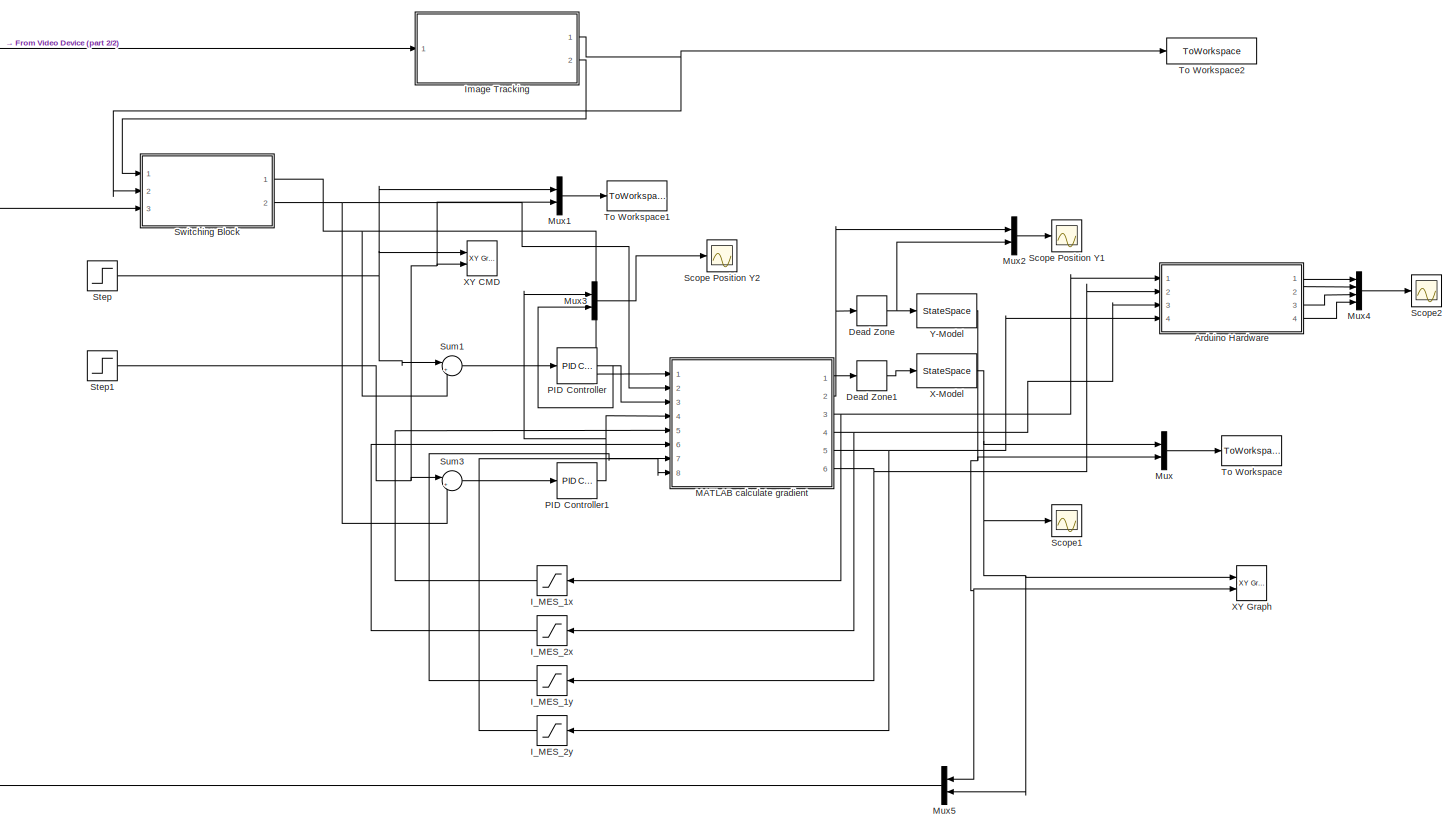
[diagram: root canvas - part 1/2, most of the canvas]
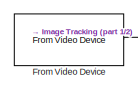
[diagram: root canvas - part 2/2, top left region]
MODEL slx_6fe9101bec93
KIND model
CONFIG AbsTol = auto
CONFIG FixedStep = auto
CONFIG MaxStep = auto
CONFIG MinStep = auto
CONFIG RelTol = 1e-3
CONFIG SampleTimeConstraint = Unconstrained
CONFIG Solver = ode45
CONFIG SolverMode = Auto
CONFIG SolverName = ode45
CONFIG StartTime = 0.0
CONFIG StopTime = 30
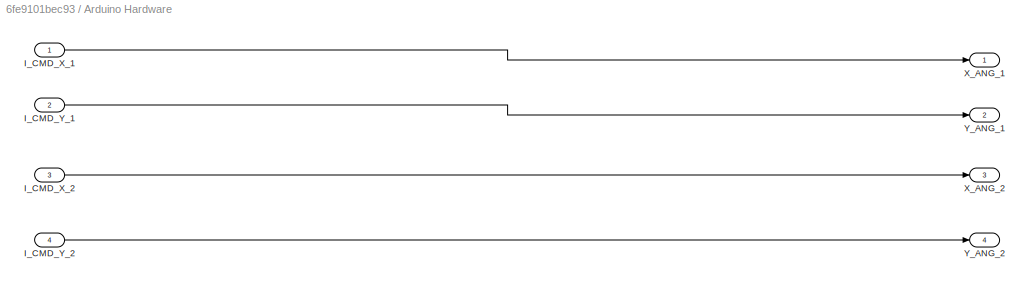
BLOCK [SubSystem] Arduino Hardware
  Ports = [4, 4]
  RequestExecContextInheritance = off
  Variant = off
BLOCK [Inport] Arduino Hardware/I_CMD_X_1
  IconDisplay = Port number
BLOCK [Inport] Arduino Hardware/I_CMD_X_2
  IconDisplay = Port number
  Port = 3
BLOCK [Inport] Arduino Hardware/I_CMD_Y_1
  IconDisplay = Port number
  Port = 2
BLOCK [Inport] Arduino Hardware/I_CMD_Y_2
  IconDisplay = Port number
  Port = 4
BLOCK [Outport] Arduino Hardware/X_ANG_1
  IconDisplay = Port number
BLOCK [Outport] Arduino Hardware/X_ANG_2
  IconDisplay = Port number
  Port = 3
BLOCK [Outport] Arduino Hardware/Y_ANG_1
  IconDisplay = Port number
  Port = 2
BLOCK [Outport] Arduino Hardware/Y_ANG_2
  IconDisplay = Port number
  Port = 4
BLOCK [DeadZone] Dead Zone
  LowerValue = -0.001
  UpperValue = 0.001
BLOCK [DeadZone] Dead Zone1
  LowerValue = -0.001
  UpperValue = 0.001
BLOCK [Reference] From Video Device  REF=imaqlib/From Video Device
  Ports = [0, 1]
  SourceBlock = imaqlib/From Video Device
  SourceType = From Video Device
  UserDataPersistent = on
BLOCK [Saturate] I_MES_1x
  InputPortMap = u0
  LowerLimit = -17
  Ports = [1, 1]
  UpperLimit = 17
BLOCK [Saturate] I_MES_1y
  InputPortMap = u0
  LowerLimit = -17
  Ports = [1, 1]
  UpperLimit = 17
BLOCK [Saturate] I_MES_2x
  InputPortMap = u0
  LowerLimit = -17
  Ports = [1, 1]
  UpperLimit = 17
BLOCK [Saturate] I_MES_2y
  InputPortMap = u0
  LowerLimit = -17
  Ports = [1, 1]
  UpperLimit = 17
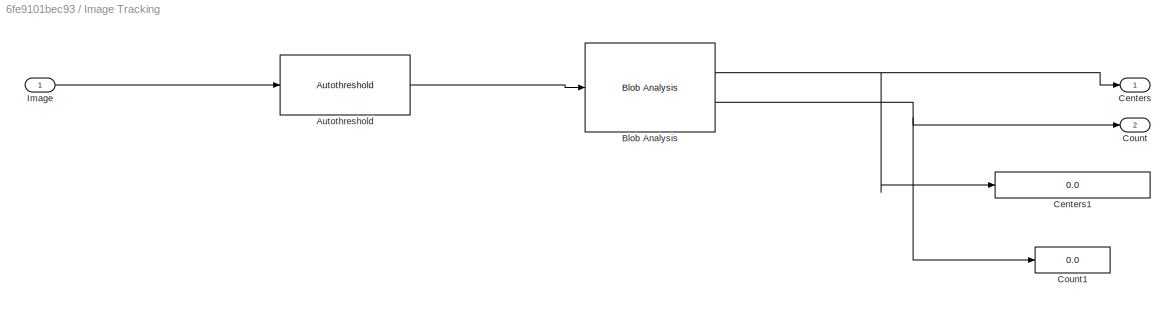
BLOCK [SubSystem] Image Tracking
  Ports = [1, 2]
  RequestExecContextInheritance = off
  Variant = off
BLOCK [Reference] Image Tracking/Autothreshold  REF=visionconversions/Autothreshold
  Ports = [1, 1]
  SourceBlock = visionconversions/Autothreshold
  SourceType = Autothreshold
BLOCK [Reference] Image Tracking/Blob Analysis  REF=visionstatistics/Blob Analysis
  Ports = [1, 2]
  SourceBlock = visionstatistics/Blob Analysis
  SourceType = Blob Analysis
  Tag = vipblks_row_conv
BLOCK [Outport] Image Tracking/Centers
  IconDisplay = Port number
BLOCK [Display] Image Tracking/Centers1
  Decimation = 1
  Ports = [1]
BLOCK [Outport] Image Tracking/Count
  IconDisplay = Port number
  Port = 2
BLOCK [Display] Image Tracking/Count1
  Decimation = 1
  Format = long
  Ports = [1]
BLOCK [Inport] Image Tracking/Image
  IconDisplay = Port number
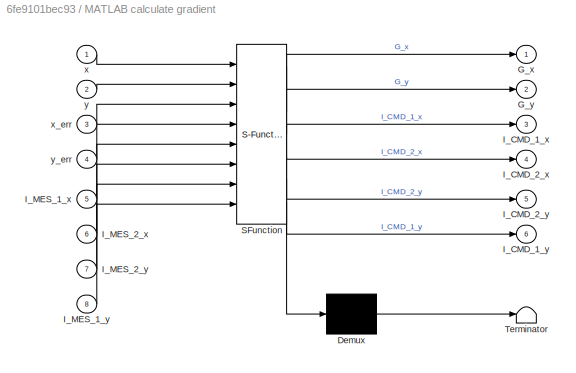
BLOCK [SubSystem] MATLAB calculate gradient
  ErrorFcn = Stateflow.Translate.translate
  PermitHierarchicalResolution = ExplicitOnly
  Ports = [8, 6]
  RequestExecContextInheritance = off
  SFBlockType = MATLAB Function
  TreatAsAtomicUnit = on
  Variant = off
BLOCK [Demux] MATLAB calculate gradient/ Demux 
  Outputs = 1
  Ports = [1, 1]
BLOCK [S-Function] MATLAB calculate gradient/ SFunction 
  EnableBusSupport = on
  FunctionName = sf_sfun
  PortCounts = [8 7]
  Ports = [8, 7]
  SFunctionDeploymentMode = off
  Tag = Stateflow S-Function ball_model_xy 2
BLOCK [Terminator] MATLAB calculate gradient/ Terminator 
BLOCK [Outport] MATLAB calculate gradient/G_x
  IconDisplay = Port number
BLOCK [Outport] MATLAB calculate gradient/G_y
  IconDisplay = Port number
  Port = 2
BLOCK [Outport] MATLAB calculate gradient/I_CMD_1_x
  IconDisplay = Port number
  Port = 3
BLOCK [Outport] MATLAB calculate gradient/I_CMD_1_y
  IconDisplay = Port number
  Port = 6
BLOCK [Outport] MATLAB calculate gradient/I_CMD_2_x
  IconDisplay = Port number
  Port = 4
BLOCK [Outport] MATLAB calculate gradient/I_CMD_2_y
  IconDisplay = Port number
  Port = 5
BLOCK [Inport] MATLAB calculate gradient/I_MES_1_x
  IconDisplay = Port number
  Port = 5
BLOCK [Inport] MATLAB calculate gradient/I_MES_1_y
  IconDisplay = Port number
  Port = 8
BLOCK [Inport] MATLAB calculate gradient/I_MES_2_x
  IconDisplay = Port number
  Port = 6
BLOCK [Inport] MATLAB calculate gradient/I_MES_2_y
  IconDisplay = Port number
  Port = 7
BLOCK [Inport] MATLAB calculate gradient/x
  IconDisplay = Port number
BLOCK [Inport] MATLAB calculate gradient/x_err
  IconDisplay = Port number
  Port = 3
BLOCK [Inport] MATLAB calculate gradient/y
  IconDisplay = Port number
  Port = 2
BLOCK [Inport] MATLAB calculate gradient/y_err
  IconDisplay = Port number
  Port = 4
BLOCK [Mux] Mux
  DisplayOption = bar
  Inputs = 2
  Ports = [2, 1]
BLOCK [Mux] Mux1
  DisplayOption = bar
  Inputs = 2
  Ports = [2, 1]
BLOCK [Mux] Mux2
  DisplayOption = bar
  Inputs = 2
  Ports = [2, 1]
BLOCK [Mux] Mux3
  DisplayOption = bar
  Inputs = 2
  Ports = [2, 1]
BLOCK [Mux] Mux4
  DisplayOption = bar
  Ports = [4, 1]
BLOCK [Mux] Mux5
  DisplayOption = bar
  Inputs = 2
  Ports = [2, 1]
BLOCK [Reference] PID Controller  REF=simulink/Continuous/PID Controller
  Ports = [1, 1]
  SourceBlock = simulink/Continuous/PID Controller
  SourceType = PID 1dof
BLOCK [Reference] PID Controller1  REF=simulink/Continuous/PID Controller
  Ports = [1, 1]
  SourceBlock = simulink/Continuous/PID Controller
  SourceType = PID 1dof
BLOCK [Scope] Scope Position Y1
  Ports = [1]
  ScopeSpecificationString = C++SS(StrPVP('Location','[17, 170, 1310, 762]'),StrPVP('Open','off'),MxPVP('AxesTitles',24,'struct(''axes1'',''%<SignalLabel>'')'),MxPVP('ScopeGraphics',28,'struct(''FigureColor'',''[0.5 0.5 0.5]'',''AxesColor'',''[0 0 0]'',''AxesTickColor'',''[1 1 1]'',''LineColors'',''[1 1 0;1 0 1;0 1 1;1 0 0;0 1 0;0 0 1]'',''LineStyles'',''-|-|-|-|-|-'',''LineWidths'',''[0.5 0.5 0.5 0.5 0.5 0.5]'',''MarkerStyle...<+347ch>
BLOCK [Scope] Scope Position Y2
  Ports = [1]
  ScopeSpecificationString = C++SS(StrPVP('Location','[17, 163, 1300, 762]'),StrPVP('Open','off'),MxPVP('AxesTitles',24,'struct(''axes1'',''%<SignalLabel>'')'),MxPVP('ScopeGraphics',28,'struct(''FigureColor'',''[0.5 0.5 0.5]'',''AxesColor'',''[0 0 0]'',''AxesTickColor'',''[1 1 1]'',''LineColors'',''[1 1 0;1 0 1;0 1 1;1 0 0;0 1 0;0 0 1]'',''LineStyles'',''-|-|-|-|-|-'',''LineWidths'',''[0.5 0.5 0.5 0.5 0.5 0.5]'',''MarkerStyle...<+347ch>
BLOCK [Scope] Scope1
  Ports = [1]
  ScopeSpecificationString = C++SS(StrPVP('Location','[6, 88, 1352, 762]'),StrPVP('Open','off'),MxPVP('AxesTitles',24,'struct(''axes1'',''%<SignalLabel>'')'),MxPVP('ScopeGraphics',28,'struct(''FigureColor'',''[0.5 0.5 0.5]'',''AxesColor'',''[0 0 0]'',''AxesTickColor'',''[1 1 1]'',''LineColors'',''[1 1 0;1 0 1;0 1 1;1 0 0;0 1 0;0 0 1]'',''LineStyles'',''-|-|-|-|-|-'',''LineWidths'',''[0.5 0.5 0.5 0.5 0.5 0.5]'',''MarkerStyles'...<+359ch>
BLOCK [Scope] Scope2
  Ports = [1]
  ScopeSpecificationString = C++SS(StrPVP('Location','[6, 88, 1352, 762]'),StrPVP('Open','off'),MxPVP('AxesTitles',24,'struct(''axes1'',''%<SignalLabel>'')'),MxPVP('ScopeGraphics',28,'struct(''FigureColor'',''[0.5 0.5 0.5]'',''AxesColor'',''[0 0 0]'',''AxesTickColor'',''[1 1 1]'',''LineColors'',''[1 1 0;1 0 1;0 1 1;1 0 0;0 1 0;0 0 1]'',''LineStyles'',''-|-|-|-|-|-'',''LineWidths'',''[0.5 0.5 0.5 0.5 0.5 0.5]'',''MarkerStyles'...<+390ch>
BLOCK [Step] Step
  SampleTime = 0
BLOCK [Step] Step1
  SampleTime = 0
BLOCK [Sum] Sum1
  IconShape = round
  InputSameDT = off
  Inputs = |+-
  OutDataTypeStr = Inherit: Inherit via internal rule
  Ports = [2, 1]
  SaturateOnIntegerOverflow = off
BLOCK [Sum] Sum3
  IconShape = round
  InputSameDT = off
  Inputs = |+-
  OutDataTypeStr = Inherit: Inherit via internal rule
  Ports = [2, 1]
  SaturateOnIntegerOverflow = off
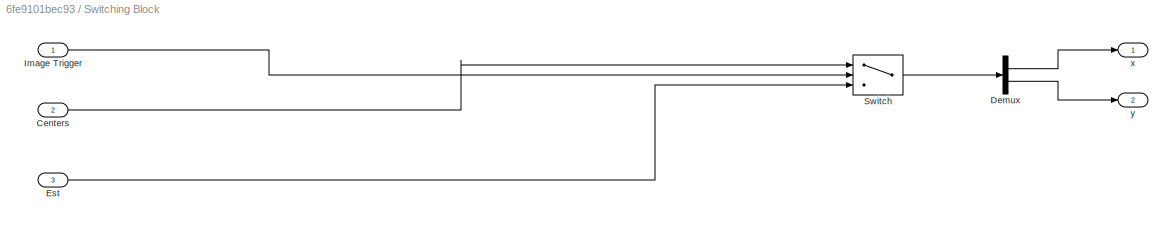
BLOCK [SubSystem] Switching Block
  Ports = [3, 2]
  RequestExecContextInheritance = off
  Variant = off
BLOCK [Inport] Switching Block/Centers
  IconDisplay = Port number
  Port = 2
BLOCK [Demux] Switching Block/Demux
  DisplayOption = bar
  Outputs = 2
  Ports = [1, 2]
BLOCK [Inport] Switching Block/Est
  IconDisplay = Port number
  Port = 3
BLOCK [Inport] Switching Block/Image Trigger
  IconDisplay = Port number
BLOCK [Switch] Switching Block/Switch
  Criteria = u2 > Threshold
  InputSameDT = off
  SaturateOnIntegerOverflow = off
BLOCK [Outport] Switching Block/x
  IconDisplay = Port number
BLOCK [Outport] Switching Block/y
  IconDisplay = Port number
  Port = 2
BLOCK [ToWorkspace] To Workspace
  FixptAsFi = on
  MaxDataPoints = inf
  Ports = [1]
  SampleTime = -1
  Save2DSignal = 3-D array (concatenate along third dimension)
  VariableName = XY_PLOT
BLOCK [ToWorkspace] To Workspace1
  FixptAsFi = on
  MaxDataPoints = inf
  Ports = [1]
  SampleTime = -1
  Save2DSignal = 3-D array (concatenate along third dimension)
  VariableName = XY_CMD
BLOCK [ToWorkspace] To Workspace2
  FixptAsFi = on
  MaxDataPoints = inf
  Ports = [1]
  SampleTime = -1
  Save2DSignal = 3-D array (concatenate along third dimension)
  VariableName = centers
BLOCK [StateSpace] X-Model
  A = [0 1;0 S1]
  B = [0;1]
  C = [1 0]
  D = 0
  Ports = [1, 1]
  X0 = [Outx 0]
BLOCK [Reference] XY CMD  REF=simulink/Sinks/XY Graph
  Ports = [2]
  SourceBlock = simulink/Sinks/XY Graph
  SourceType = XY scope.
BLOCK [Reference] XY Graph  REF=simulink/Sinks/XY Graph
  Ports = [2]
  SourceBlock = simulink/Sinks/XY Graph
  SourceType = XY scope.
BLOCK [StateSpace] Y-Model
  A = [0 1;0 S1]
  B = [0;1]
  C = [1 0]
  D = 0
  Ports = [1, 1]
  X0 = [Outy 0]
LINE Arduino Hardware/I_CMD_X_1:1 -> Arduino Hardware/X_ANG_1:1
LINE Arduino Hardware/I_CMD_X_2:1 -> Arduino Hardware/X_ANG_2:1
LINE Arduino Hardware/I_CMD_Y_1:1 -> Arduino Hardware/Y_ANG_1:1
LINE Arduino Hardware/I_CMD_Y_2:1 -> Arduino Hardware/Y_ANG_2:1
LINE Arduino Hardware:1 -> Mux4:1
LINE Arduino Hardware:2 -> Mux4:2
LINE Arduino Hardware:3 -> Mux4:3
LINE Arduino Hardware:4 -> Mux4:4
LINE Dead Zone1:1 -> X-Model:1
NET Dead Zone:1 -> Mux2:2, Y-Model:1
LINE From Video Device:1 -> Image Tracking:1
LINE I_MES_1x:1 -> MATLAB calculate gradient:5
LINE I_MES_1y:1 -> MATLAB calculate gradient:7
LINE I_MES_2x:1 -> MATLAB calculate gradient:6
LINE I_MES_2y:1 -> MATLAB calculate gradient:8
LINE Image Tracking/Autothreshold:1 -> Image Tracking/Blob Analysis:1
NET Image Tracking/Blob Analysis:1 -> Image Tracking/Centers1:1, Image Tracking/Centers:1
NET Image Tracking/Blob Analysis:2 -> Image Tracking/Count1:1, Image Tracking/Count:1
LINE Image Tracking/Image:1 -> Image Tracking/Autothreshold:1
NET Image Tracking:1 -> Switching Block:2, To Workspace2:1
LINE Image Tracking:2 -> Switching Block:1
LINE MATLAB calculate gradient:1 -> Dead Zone1:1
NET MATLAB calculate gradient:2 -> Dead Zone:1, Mux2:1
NET MATLAB calculate gradient:3 -> Arduino Hardware:1, I_MES_1x:1
NET MATLAB calculate gradient:4 -> Arduino Hardware:3, I_MES_2x:1
NET MATLAB calculate gradient:5 -> Arduino Hardware:4, I_MES_2y:1
NET MATLAB calculate gradient:6 -> Arduino Hardware:2, I_MES_1y:1
LINE Mux1:1 -> To Workspace1:1
LINE Mux2:1 -> Scope Position Y1:1
LINE Mux3:1 -> Scope Position Y2:1
LINE Mux4:1 -> Scope2:1
LINE Mux5:1 -> Switching Block:3
LINE Mux:1 -> To Workspace:1
NET PID Controller1:1 -> MATLAB calculate gradient:4, Mux3:1
NET PID Controller:1 -> MATLAB calculate gradient:3, Mux3:2
NET Step1:1 -> Mux1:2, Sum3:1, XY CMD:2
NET Step:1 -> Mux1:1, Sum1:1, XY CMD:1
LINE Sum1:1 -> PID Controller:1
LINE Sum3:1 -> PID Controller1:1
LINE Switching Block/Centers:1 -> Switching Block/Switch:1
LINE Switching Block/Demux:1 -> Switching Block/x:1
LINE Switching Block/Demux:2 -> Switching Block/y:1
LINE Switching Block/Est:1 -> Switching Block/Switch:3
LINE Switching Block/Image Trigger:1 -> Switching Block/Switch:2
LINE Switching Block/Switch:1 -> Switching Block/Demux:1
NET Switching Block:1 -> MATLAB calculate gradient:1, Sum1:2
NET Switching Block:2 -> MATLAB calculate gradient:2, Sum3:2
NET X-Model:1 -> Mux5:2, Mux:1, Scope1:1, XY Graph:1
NET Y-Model:1 -> Mux5:1, Mux:2, XY Graph:2
note: NET lines group one-source signal fan-out (src -> all destinations, sorted); 1:1 wires keep LINE
CHART MATLAB calculate gradient states=1 transitions=1
  STATE_LABEL 'eML_blk_kernel()'
  STATE_LABEL 'SCRIPT:\nfunction [G_x,G_y,I_CMD_1_x,I_CMD_2_x,I_CMD_2_y,I_CMD_1_y] = BGrad(x,y,x_err,y_err,I_MES_1_x,I_MES_2_x,I_MES_2_y,I_MES_1_y)\n%#codegen\n%Model of Magnetix Fields\nN = 510; %number of coils\nM=1;\nW = 0.001;\nu_o =(4*3.14*10^(-7));\nuk = 0.47;\nFN = 9.81*W\nFF = (uk*FN)/W;\n%I_1 = 17 %Max current through coil in A\n%I_2 = 17\nR =0.08; %radius of coil in meters\nR_1=0.01;\n%s = linspace(0,10)\n%b_z=0:99\n%b...<+1356ch>'
